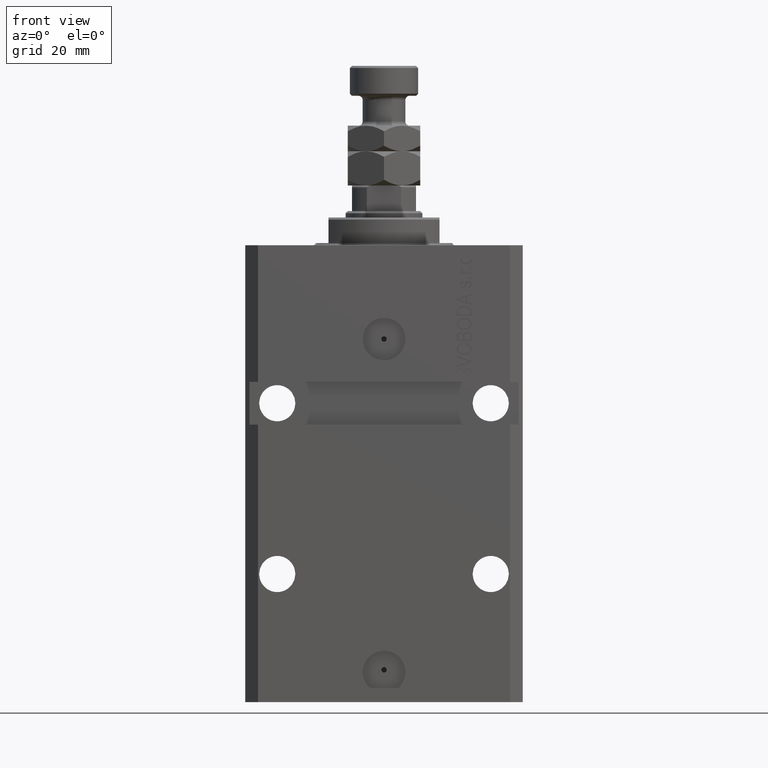
[diagram: clean part render]
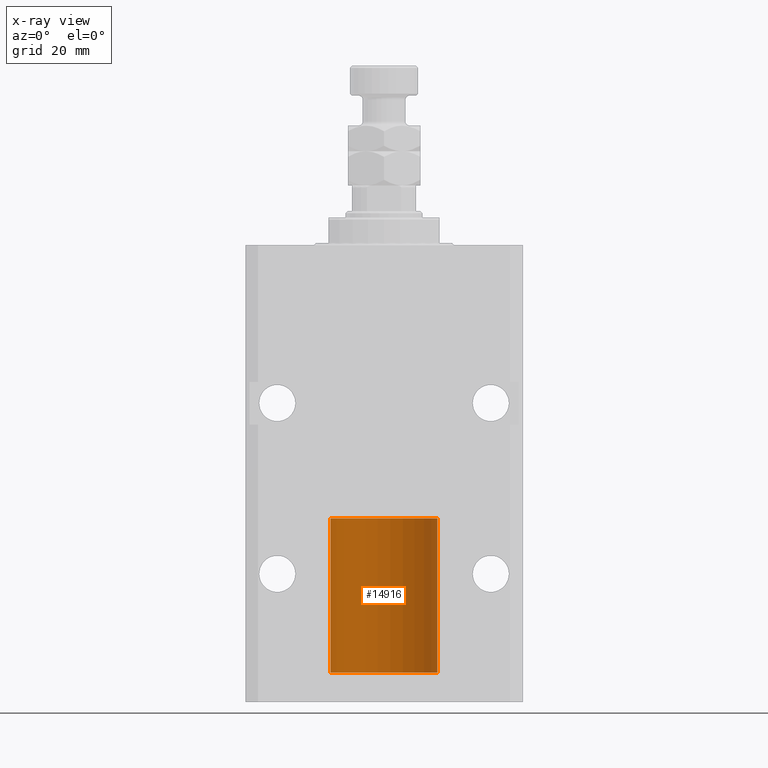
[diagram: x-ray — body ghosted, one internal face saturated and labeled with its STEP entity id]
A machine part, front view, then the same camera in x-ray: the body is ghosted and one INTERNAL B-rep face — a face not visible from any outside direction — is saturated and labeled: STEP entity #14916.
In plain terms, the highlighted cylindrical surface (partial cylindrical patch) has radius 12.5 mm, axis along (-0, -0, -1).
Its self-contained STEP definition (entity closure, byte-faithful):
#705 = VERTEX_POINT ( 'NONE', #26088 ) ;
#1033 = DIRECTION ( 'NONE',  ( 1.000000000000000000, 0.000000000000000000, 0.000000000000000000 ) ) ;
#1676 = DIRECTION ( 'NONE',  ( -0.000000000000000000, -0.000000000000000000, -1.000000000000000000 ) ) ;
#1846 = CARTESIAN_POINT ( 'NONE',  ( 0.000000000000000000, 0.000000000000000000, 36.10000000000000142 ) ) ;
#4416 = ORIENTED_EDGE ( 'NONE', *, *, #9664, .F. ) ;
#7408 = VERTEX_POINT ( 'NONE', #15411 ) ;
#8447 = VECTOR ( 'NONE', #29240, 1000.000000000000000 ) ;
#8563 = EDGE_CURVE ( 'NONE', #26335, #7408, #30164, .T. ) ;
#9664 = EDGE_CURVE ( 'NONE', #42802, #7408, #17621, .T. ) ;
#10815 = CARTESIAN_POINT ( 'NONE',  ( 12.50000000000000000, 1.530808498934191521E-15, 0.000000000000000000 ) ) ;
#11083 = AXIS2_PLACEMENT_3D ( 'NONE', #16573, #1676, #36248 ) ;
#12440 = AXIS2_PLACEMENT_3D ( 'NONE', #16167, #12891, #1033 ) ;
#12793 = CYLINDRICAL_SURFACE ( 'NONE', #11083, 12.50000000000000000 ) ;
#12891 = DIRECTION ( 'NONE',  ( 0.000000000000000000, 0.000000000000000000, 1.000000000000000000 ) ) ;
#14916 = ADVANCED_FACE ( 'NONE', ( #47841 ), #12793, .T. ) ;
#14958 = CARTESIAN_POINT ( 'NONE',  ( 12.50000000000000000, 1.530808498934191521E-15, 36.10000000000000142 ) ) ;
#15411 = CARTESIAN_POINT ( 'NONE',  ( -12.50000000000000000, 0.000000000000000000, 0.000000000000000000 ) ) ;
#16167 = CARTESIAN_POINT ( 'NONE',  ( 0.000000000000000000, 0.000000000000000000, 0.000000000000000000 ) ) ;
#16573 = CARTESIAN_POINT ( 'NONE',  ( 0.000000000000000000, 0.000000000000000000, 36.10000000000000142 ) ) ;
#17234 = DIRECTION ( 'NONE',  ( 0.000000000000000000, 0.000000000000000000, 1.000000000000000000 ) ) ;
#17621 = LINE ( 'NONE', #33025, #8447 ) ;
#17966 = CARTESIAN_POINT ( 'NONE',  ( -12.50000000000000000, 0.000000000000000000, 36.10000000000000142 ) ) ;
#23761 = AXIS2_PLACEMENT_3D ( 'NONE', #1846, #17234, #48032 ) ;
#26088 = CARTESIAN_POINT ( 'NONE',  ( 12.50000000000000000, 1.530808498934191521E-15, 36.10000000000000142 ) ) ;
#26335 = VERTEX_POINT ( 'NONE', #10815 ) ;
#26341 = LINE ( 'NONE', #14958, #39111 ) ;
#29240 = DIRECTION ( 'NONE',  ( -0.000000000000000000, -0.000000000000000000, -1.000000000000000000 ) ) ;
#30164 = CIRCLE ( 'NONE', #12440, 12.50000000000000000 ) ;
#30373 = EDGE_LOOP ( 'NONE', ( #31557, #33277, #33283, #4416 ) ) ;
#31557 = ORIENTED_EDGE ( 'NONE', *, *, #37780, .F. ) ;
#33025 = CARTESIAN_POINT ( 'NONE',  ( -12.50000000000000000, 0.000000000000000000, 36.10000000000000142 ) ) ;
#33277 = ORIENTED_EDGE ( 'NONE', *, *, #39072, .T. ) ;
#33283 = ORIENTED_EDGE ( 'NONE', *, *, #8563, .T. ) ;
#36248 = DIRECTION ( 'NONE',  ( -1.000000000000000000, 0.000000000000000000, 0.000000000000000000 ) ) ;
#37780 = EDGE_CURVE ( 'NONE', #705, #42802, #40682, .T. ) ;
#38676 = DIRECTION ( 'NONE',  ( -0.000000000000000000, -0.000000000000000000, -1.000000000000000000 ) ) ;
#39072 = EDGE_CURVE ( 'NONE', #705, #26335, #26341, .T. ) ;
#39111 = VECTOR ( 'NONE', #38676, 1000.000000000000000 ) ;
#40682 = CIRCLE ( 'NONE', #23761, 12.50000000000000000 ) ;
#42802 = VERTEX_POINT ( 'NONE', #17966 ) ;
#47841 = FACE_OUTER_BOUND ( 'NONE', #30373, .T. ) ;
#48032 = DIRECTION ( 'NONE',  ( 1.000000000000000000, 0.000000000000000000, 0.000000000000000000 ) ) ;